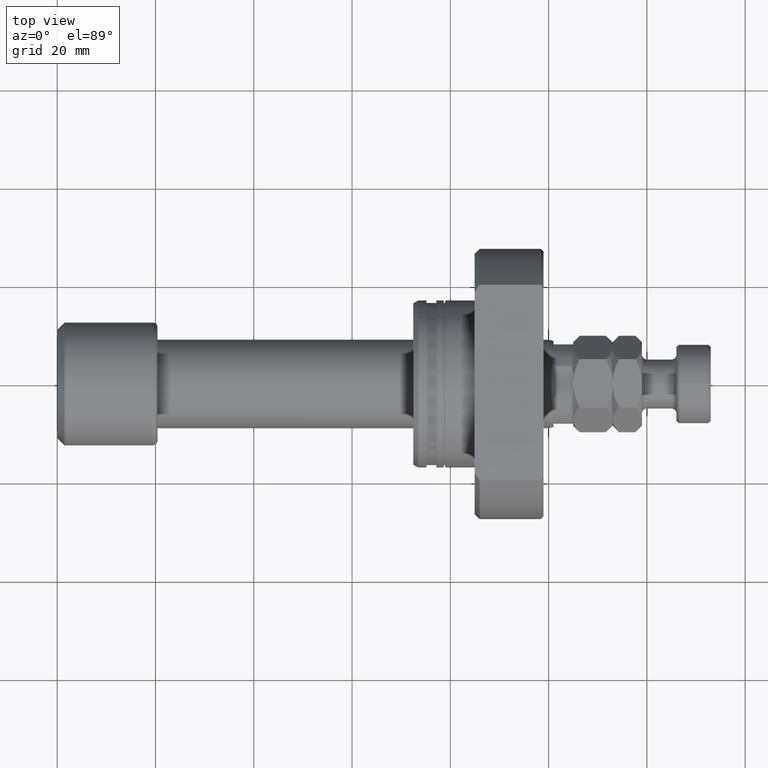
[diagram: clean part render]
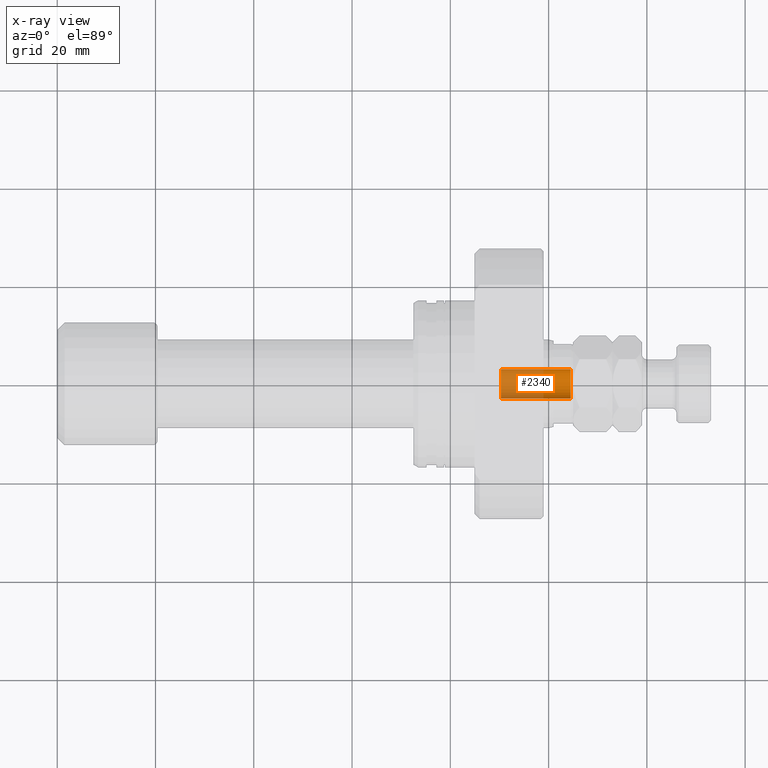
[diagram: x-ray — body ghosted, one internal face saturated and labeled with its STEP entity id]
A machine part, top view, then the same camera in x-ray: the body is ghosted and one INTERNAL B-rep face — a face not visible from any outside direction — is saturated and labeled: STEP entity #2340.
In plain terms, the highlighted cylindrical surface (edge-blend (fillet) strip) has radius 3 mm, axis along (1, -0, 0).
Its self-contained STEP definition (entity closure, byte-faithful):
#15 = EDGE_CURVE ( 'NONE', #583, #2236, #107, .T. ) ;
#107 = LINE ( 'NONE', #130, #1899 ) ;
#130 = CARTESIAN_POINT ( 'NONE',  ( 90.29999999999992610, -3.000000000002005951, 3.673940397442683068E-16 ) ) ;
#344 = AXIS2_PLACEMENT_3D ( 'NONE', #529, #4644, #1349 ) ;
#426 = CIRCLE ( 'NONE', #2235, 3.000000000000509370 ) ;
#504 = CARTESIAN_POINT ( 'NONE',  ( 90.30000000000003979, 2.999999999999012790, 0.000000000000000000 ) ) ;
#529 = CARTESIAN_POINT ( 'NONE',  ( 90.29999999999998295, -1.496510113941484110E-12, 0.000000000000000000 ) ) ;
#548 = FACE_OUTER_BOUND ( 'NONE', #2942, .T. ) ;
#583 = VERTEX_POINT ( 'NONE', #1412 ) ;
#592 = VECTOR ( 'NONE', #4405, 1000.000000000000000 ) ;
#905 = CIRCLE ( 'NONE', #1065, 3.000000000000509370 ) ;
#981 = DIRECTION ( 'NONE',  ( -1.850371707708280162E-14, -1.000000000000000000, 0.000000000000000000 ) ) ;
#1065 = AXIS2_PLACEMENT_3D ( 'NONE', #4479, #2803, #4759 ) ;
#1153 = CARTESIAN_POINT ( 'NONE',  ( 104.5000000000001563, 2.999999999998777422, 0.000000000000000000 ) ) ;
#1349 = DIRECTION ( 'NONE',  ( 1.850371707708280162E-14, 1.000000000000000000, 0.000000000000000000 ) ) ;
#1412 = CARTESIAN_POINT ( 'NONE',  ( 90.29999999999992610, -3.000000000002005951, 3.673940397442683068E-16 ) ) ;
#1418 = LINE ( 'NONE', #4770, #592 ) ;
#1494 = CARTESIAN_POINT ( 'NONE',  ( 104.5000000000000568, -3.000000000002240430, 3.673940397442826542E-16 ) ) ;
#1899 = VECTOR ( 'NONE', #4622, 1000.000000000000000 ) ;
#2092 = EDGE_CURVE ( 'NONE', #583, #3035, #905, .T. ) ;
#2235 = AXIS2_PLACEMENT_3D ( 'NONE', #2769, #4357, #981 ) ;
#2236 = VERTEX_POINT ( 'NONE', #1494 ) ;
#2340 = ADVANCED_FACE ( 'NONE', ( #548 ), #4722, .F. ) ;
#2357 = EDGE_CURVE ( 'NONE', #2236, #3286, #426, .T. ) ;
#2377 = ORIENTED_EDGE ( 'NONE', *, *, #2092, .F. ) ;
#2655 = ORIENTED_EDGE ( 'NONE', *, *, #3136, .F. ) ;
#2769 = CARTESIAN_POINT ( 'NONE',  ( 104.5000000000001137, -1.731841715469383114E-12, 0.000000000000000000 ) ) ;
#2803 = DIRECTION ( 'NONE',  ( 1.000000000000000000, -1.657264799492230625E-14, 0.000000000000000000 ) ) ;
#2942 = EDGE_LOOP ( 'NONE', ( #2377, #3510, #2968, #2655 ) ) ;
#2968 = ORIENTED_EDGE ( 'NONE', *, *, #2357, .T. ) ;
#3035 = VERTEX_POINT ( 'NONE', #504 ) ;
#3136 = EDGE_CURVE ( 'NONE', #3035, #3286, #1418, .T. ) ;
#3286 = VERTEX_POINT ( 'NONE', #1153 ) ;
#3510 = ORIENTED_EDGE ( 'NONE', *, *, #15, .T. ) ;
#4357 = DIRECTION ( 'NONE',  ( 1.000000000000000000, -1.657264799492254606E-14, 0.000000000000000000 ) ) ;
#4405 = DIRECTION ( 'NONE',  ( 1.000000000000000000, -1.657264799492230625E-14, -0.000000000000000000 ) ) ;
#4479 = CARTESIAN_POINT ( 'NONE',  ( 90.29999999999998295, -1.496510113941484110E-12, 0.000000000000000000 ) ) ;
#4622 = DIRECTION ( 'NONE',  ( 1.000000000000000000, -1.657264799492230625E-14, -0.000000000000000000 ) ) ;
#4644 = DIRECTION ( 'NONE',  ( 1.000000000000000000, -1.657264799492230625E-14, -0.000000000000000000 ) ) ;
#4722 = CYLINDRICAL_SURFACE ( 'NONE', #344, 3.000000000000509370 ) ;
#4759 = DIRECTION ( 'NONE',  ( 1.850371707708280162E-14, 1.000000000000000000, 0.000000000000000000 ) ) ;
#4770 = CARTESIAN_POINT ( 'NONE',  ( 90.30000000000003979, 2.999999999999012790, 0.000000000000000000 ) ) ;